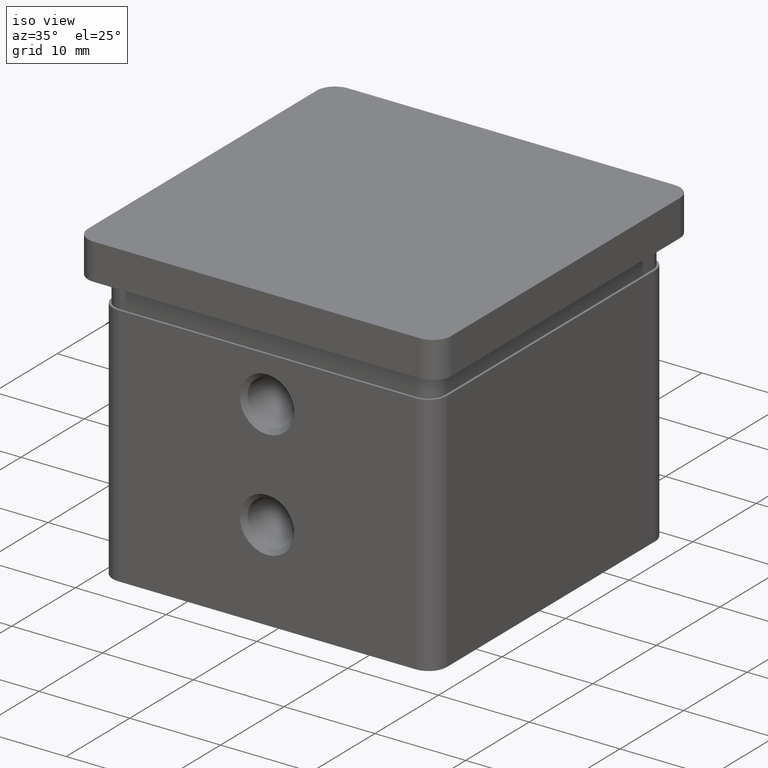
[diagram: clean part render]
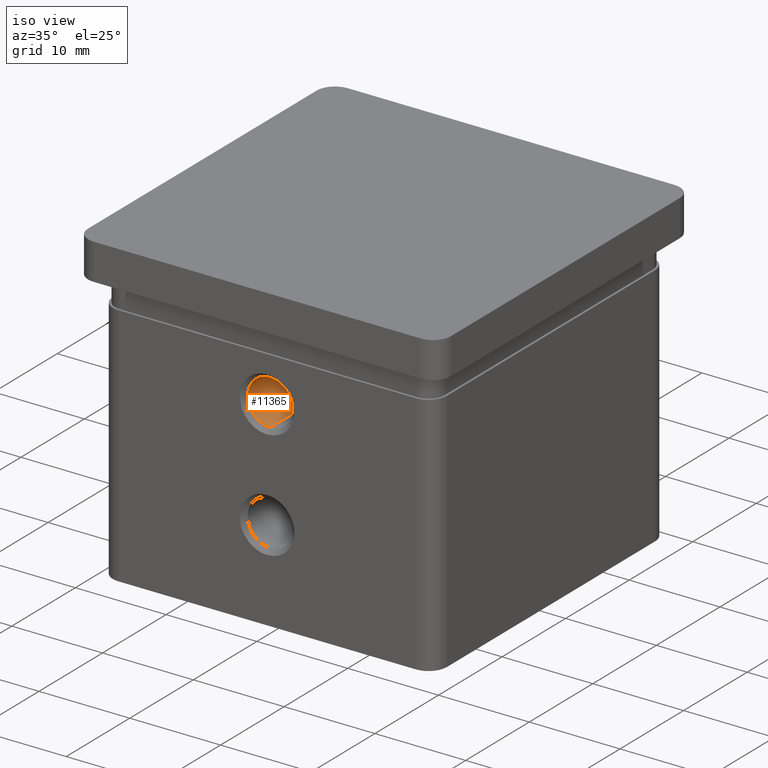
[diagram: same view with one face highlighted and labeled with its STEP entity id]
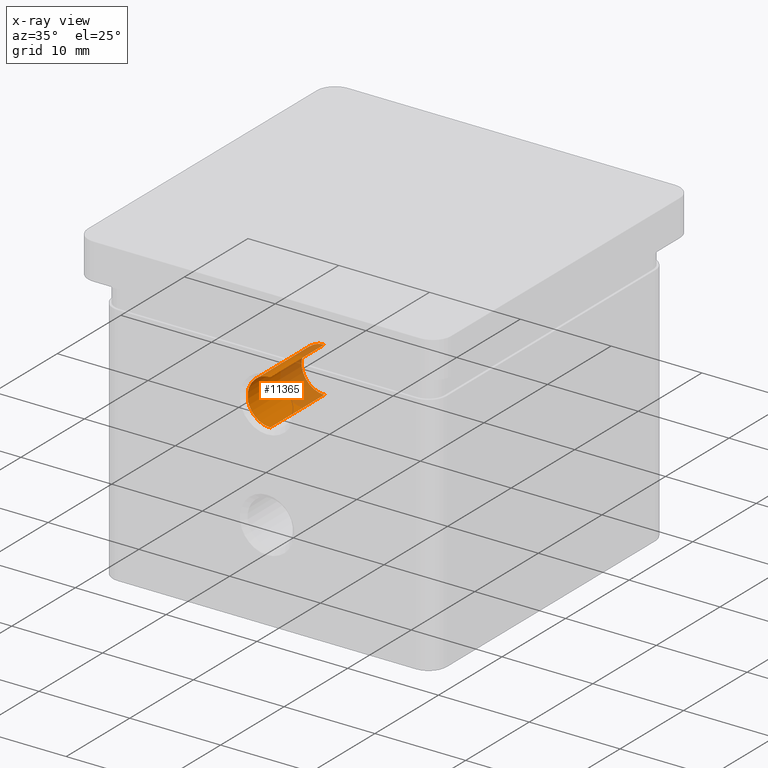
[diagram: x-ray of the same camera — body ghosted, the highlighted face saturated]
A machine part, iso view. The second image highlights one B-rep face of the part: STEP entity #11365.
The next image is the same camera in x-ray: the body ghosted, the highlighted face saturated — about 37% of this face is hidden behind the body in this view.
In plain terms, the highlighted cylindrical surface (edge-blend (fillet) strip) has radius 2.5 mm, axis along (-0, -1, -0).
Its self-contained STEP definition (entity closure, byte-faithful):
#560 = CIRCLE ( 'NONE', #6511, 2.499999999999988454 ) ;
#598 = CARTESIAN_POINT ( 'NONE',  ( -1.640113419601775833E-15, -17.90000000000000568, -9.500000000000010658 ) ) ;
#728 = ORIENTED_EDGE ( 'NONE', *, *, #11065, .F. ) ;
#1466 = ORIENTED_EDGE ( 'NONE', *, *, #5406, .T. ) ;
#1539 = ORIENTED_EDGE ( 'NONE', *, *, #13726, .T. ) ;
#1768 = CARTESIAN_POINT ( 'NONE',  ( -1.640113419601776030E-15, -18.40000000000000568, -9.500000000000012434 ) ) ;
#1789 = CYLINDRICAL_SURFACE ( 'NONE', #4292, 2.499999999999988454 ) ;
#1881 = DIRECTION ( 'NONE',  ( -0.000000000000000000, -1.000000000000000000, -0.000000000000000000 ) ) ;
#2176 = DIRECTION ( 'NONE',  ( 0.000000000000000000, 0.000000000000000000, -1.000000000000000000 ) ) ;
#2192 = VECTOR ( 'NONE', #3953, 1000.000000000000000 ) ;
#2511 = CARTESIAN_POINT ( 'NONE',  ( -1.946275119388612915E-15, -9.400000000000002132, -14.49999999999999112 ) ) ;
#2722 = CARTESIAN_POINT ( 'NONE',  ( -1.640113419601775833E-15, -9.400000000000002132, -9.500000000000010658 ) ) ;
#2786 = DIRECTION ( 'NONE',  ( 0.000000000000000000, 1.000000000000000000, 0.000000000000000000 ) ) ;
#3018 = EDGE_LOOP ( 'NONE', ( #10427, #1466, #1539, #728 ) ) ;
#3953 = DIRECTION ( 'NONE',  ( -0.000000000000000000, -1.000000000000000000, -0.000000000000000000 ) ) ;
#4292 = AXIS2_PLACEMENT_3D ( 'NONE', #7362, #9713, #2176 ) ;
#5406 = EDGE_CURVE ( 'NONE', #10610, #15062, #9187, .T. ) ;
#6194 = VECTOR ( 'NONE', #1881, 1000.000000000000000 ) ;
#6511 = AXIS2_PLACEMENT_3D ( 'NONE', #15260, #16342, #8803 ) ;
#6515 = DIRECTION ( 'NONE',  ( 0.000000000000000000, 0.000000000000000000, 1.000000000000000000 ) ) ;
#6622 = CARTESIAN_POINT ( 'NONE',  ( -1.946275119388612915E-15, -9.400000000000002132, -12.00000000000000000 ) ) ;
#7362 = CARTESIAN_POINT ( 'NONE',  ( -1.946275119388612915E-15, -18.40000000000000568, -12.00000000000000000 ) ) ;
#7777 = CARTESIAN_POINT ( 'NONE',  ( -1.946275119388612915E-15, -18.40000000000000568, -14.49999999999998934 ) ) ;
#7914 = CIRCLE ( 'NONE', #12877, 2.499999999999988454 ) ;
#8803 = DIRECTION ( 'NONE',  ( 0.000000000000000000, 0.000000000000000000, 1.000000000000000000 ) ) ;
#9187 = LINE ( 'NONE', #1768, #6194 ) ;
#9713 = DIRECTION ( 'NONE',  ( -0.000000000000000000, -1.000000000000000000, -0.000000000000000000 ) ) ;
#10427 = ORIENTED_EDGE ( 'NONE', *, *, #11587, .T. ) ;
#10527 = FACE_OUTER_BOUND ( 'NONE', #3018, .T. ) ;
#10610 = VERTEX_POINT ( 'NONE', #2722 ) ;
#11065 = EDGE_CURVE ( 'NONE', #11550, #13345, #14858, .T. ) ;
#11365 = ADVANCED_FACE ( 'NONE', ( #10527 ), #1789, .F. ) ;
#11550 = VERTEX_POINT ( 'NONE', #2511 ) ;
#11587 = EDGE_CURVE ( 'NONE', #11550, #10610, #7914, .T. ) ;
#12877 = AXIS2_PLACEMENT_3D ( 'NONE', #6622, #2786, #6515 ) ;
#13345 = VERTEX_POINT ( 'NONE', #15397 ) ;
#13726 = EDGE_CURVE ( 'NONE', #15062, #13345, #560, .T. ) ;
#14858 = LINE ( 'NONE', #7777, #2192 ) ;
#15062 = VERTEX_POINT ( 'NONE', #598 ) ;
#15260 = CARTESIAN_POINT ( 'NONE',  ( -1.946275119388612915E-15, -17.90000000000000568, -12.00000000000000000 ) ) ;
#15397 = CARTESIAN_POINT ( 'NONE',  ( -1.946275119388612915E-15, -17.90000000000000568, -14.49999999999999112 ) ) ;
#16342 = DIRECTION ( 'NONE',  ( 0.000000000000000000, -1.000000000000000000, 0.000000000000000000 ) ) ;